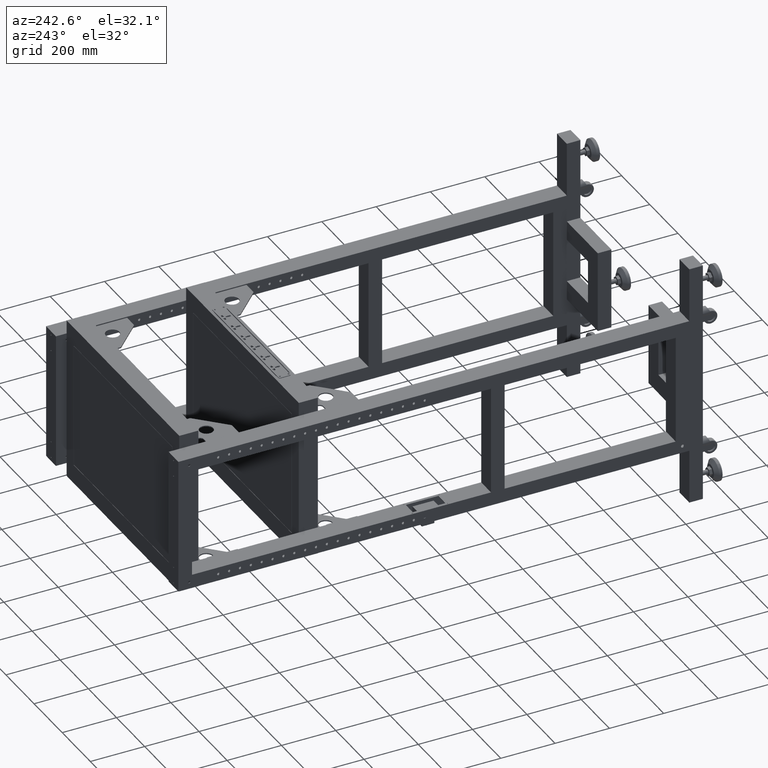
[diagram: clean part render]
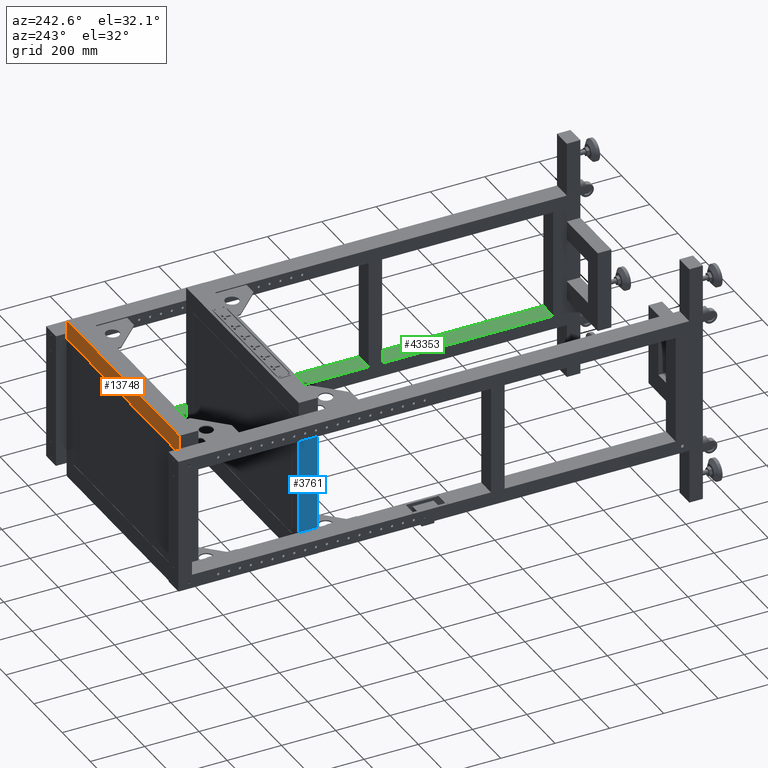
[diagram: same view with three faces highlighted in distinct colors, each labeled with its STEP entity id]
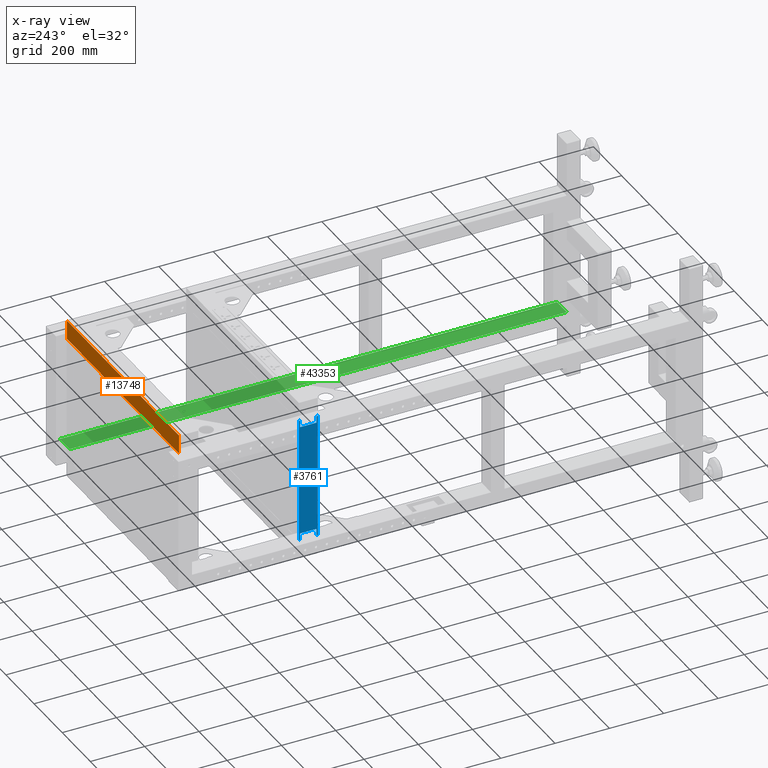
[diagram: x-ray of the same camera — body ghosted, the three highlighted faces saturated]
A machine part, auxiliary view with three faces highlighted in distinct colors.
The next image is the same camera in x-ray (body ghosted, the three faces saturated) — at least one of them is partly hidden behind the body in this view.
Their STEP definitions:

[orange] entity #13748 — the highlighted planar face has unit normal (0, -1, -0).
#2765 = EDGE_CURVE ( 'NONE', #38032, #50186, #41590, .T. ) ;
#4967 = EDGE_CURVE ( 'NONE', #11786, #50186, #11078, .T. ) ;
#10747 = CARTESIAN_POINT ( 'NONE',  ( -2666.172487437186192, 996.9410804020120622, 230.0000000000011653 ) ) ;
#11078 = LINE ( 'NONE', #10747, #46894 ) ;
#11786 = VERTEX_POINT ( 'NONE', #15694 ) ;
#13748 = ADVANCED_FACE ( 'NONE', ( #55523 ), #22703, .F. ) ;
#15446 = VERTEX_POINT ( 'NONE', #22217 ) ;
#15694 = CARTESIAN_POINT ( 'NONE',  ( -1266.172487437185964, 996.9410804020120622, 230.0000000000011653 ) ) ;
#17563 = VECTOR ( 'NONE', #41246, 1000.000000000000000 ) ;
#18889 = EDGE_CURVE ( 'NONE', #15446, #11786, #65076, .T. ) ;
#19153 = CARTESIAN_POINT ( 'NONE',  ( -2666.172487437186192, 996.9410804020118348, 300.0000000000011937 ) ) ;
#22002 = DIRECTION ( 'NONE',  ( 1.000000000000000000, 0.000000000000000000, 0.000000000000000000 ) ) ;
#22217 = CARTESIAN_POINT ( 'NONE',  ( -1266.172487437185964, 996.9410804020118348, 300.0000000000011937 ) ) ;
#22703 = PLANE ( 'NONE',  #46776 ) ;
#23400 = EDGE_CURVE ( 'NONE', #15446, #38032, #39715, .T. ) ;
#28089 = VECTOR ( 'NONE', #22002, 1000.000000000000000 ) ;
#28311 = ORIENTED_EDGE ( 'NONE', *, *, #2765, .T. ) ;
#29401 = DIRECTION ( 'NONE',  ( 0.000000000000000000, 4.000000000000000311E-15, -1.000000000000000000 ) ) ;
#30456 = ORIENTED_EDGE ( 'NONE', *, *, #4967, .F. ) ;
#38032 = VERTEX_POINT ( 'NONE', #55814 ) ;
#38469 = CARTESIAN_POINT ( 'NONE',  ( -2666.172487437186192, 996.9410804020120622, 230.0000000000011653 ) ) ;
#39715 = LINE ( 'NONE', #19153, #28089 ) ;
#40017 = CARTESIAN_POINT ( 'NONE',  ( -1266.172487437185964, 996.9410804020120622, 230.0000000000011653 ) ) ;
#41246 = DIRECTION ( 'NONE',  ( -1.061444687115305130E-30, 4.000000000000000311E-15, -1.000000000000000000 ) ) ;
#41590 = LINE ( 'NONE', #62516, #17563 ) ;
#43273 = DIRECTION ( 'NONE',  ( 1.000000000000000000, 0.000000000000000000, 0.000000000000000000 ) ) ;
#45308 = EDGE_LOOP ( 'NONE', ( #30456, #67322, #54077, #28311 ) ) ;
#46752 = DIRECTION ( 'NONE',  ( 1.000000000000000000, 0.000000000000000000, 0.000000000000000000 ) ) ;
#46776 = AXIS2_PLACEMENT_3D ( 'NONE', #38469, #55180, #43273 ) ;
#46894 = VECTOR ( 'NONE', #46752, 1000.000000000000000 ) ;
#50186 = VERTEX_POINT ( 'NONE', #66356 ) ;
#54077 = ORIENTED_EDGE ( 'NONE', *, *, #23400, .T. ) ;
#55180 = DIRECTION ( 'NONE',  ( 0.000000000000000000, -1.000000000000000000, -4.000000000000000311E-15 ) ) ;
#55523 = FACE_OUTER_BOUND ( 'NONE', #45308, .T. ) ;
#55814 = CARTESIAN_POINT ( 'NONE',  ( -470.1724874371842020, 996.9410804020121759, 300.0000000000011937 ) ) ;
#62516 = CARTESIAN_POINT ( 'NONE',  ( -470.1724874371842020, 996.9410804020124033, 230.0000000000011653 ) ) ;
#63021 = VECTOR ( 'NONE', #29401, 1000.000000000000000 ) ;
#65076 = LINE ( 'NONE', #40017, #63021 ) ;
#66356 = CARTESIAN_POINT ( 'NONE',  ( -470.1724874371842020, 996.9410804020124033, 230.0000000000011653 ) ) ;
#67322 = ORIENTED_EDGE ( 'NONE', *, *, #18889, .F. ) ;

[blue] entity #3761 — the highlighted planar face has unit normal (1, 0, 0).
#1329 = DIRECTION ( 'NONE',  ( 0.000000000000000000, 2.999999999999999839E-15, -1.000000000000000000 ) ) ;
#2138 = EDGE_CURVE ( 'NONE', #4147, #61268, #28057, .T. ) ;
#2590 = DIRECTION ( 'NONE',  ( 0.000000000000000000, -2.999999999999999839E-15, 1.000000000000000000 ) ) ;
#2899 = VERTEX_POINT ( 'NONE', #6589 ) ;
#3761 = ADVANCED_FACE ( 'NONE', ( #39564 ), #50187, .F. ) ;
#4147 = VERTEX_POINT ( 'NONE', #34327 ) ;
#6589 = CARTESIAN_POINT ( 'NONE',  ( -1268.172487437185964, 556.9410804020109254, 230.0000000000001137 ) ) ;
#7427 = CARTESIAN_POINT ( 'NONE',  ( -1268.172487437185964, 491.9410804020124033, -230.0000000000001137 ) ) ;
#8571 = VECTOR ( 'NONE', #1329, 1000.000000000000000 ) ;
#13022 = CARTESIAN_POINT ( 'NONE',  ( -1268.172487437185964, 551.9410804020110390, 205.0000000000000853 ) ) ;
#13253 = VERTEX_POINT ( 'NONE', #14626 ) ;
#13572 = CARTESIAN_POINT ( 'NONE',  ( -1268.172487437185964, 486.9410804020124033, -230.0000000000001137 ) ) ;
#13856 = ORIENTED_EDGE ( 'NONE', *, *, #17263, .T. ) ;
#14053 = LINE ( 'NONE', #18519, #55411 ) ;
#14534 = DIRECTION ( 'NONE',  ( -1.000000000000000078E-15, 1.000000000000000000, 2.999999999999999839E-15 ) ) ;
#14626 = CARTESIAN_POINT ( 'NONE',  ( -1268.172487437185964, 491.9410804020122896, -205.0000000000000853 ) ) ;
#14922 = CARTESIAN_POINT ( 'NONE',  ( -1268.172487437185964, 486.9410804020109822, 229.9999999999998863 ) ) ;
#15626 = EDGE_CURVE ( 'NONE', #22587, #13253, #35900, .T. ) ;
#16783 = DIRECTION ( 'NONE',  ( -1.000000000000000078E-15, 1.000000000000000000, 2.999999999999999839E-15 ) ) ;
#16889 = CARTESIAN_POINT ( 'NONE',  ( -1268.172487437185964, 551.9410804020110390, 237.8650255704256153 ) ) ;
#17263 = EDGE_CURVE ( 'NONE', #60945, #61268, #41651, .T. ) ;
#17805 = LINE ( 'NONE', #22957, #8571 ) ;
#18519 = CARTESIAN_POINT ( 'NONE',  ( -1268.172487437185964, 556.9410804020124033, -229.9999999999998863 ) ) ;
#18559 = VERTEX_POINT ( 'NONE', #34268 ) ;
#18715 = DIRECTION ( 'NONE',  ( -1.000000000000000078E-15, 1.000000000000000000, 2.999999999999999839E-15 ) ) ;
#18812 = VECTOR ( 'NONE', #37790, 1000.000000000000000 ) ;
#19727 = LINE ( 'NONE', #65687, #23974 ) ;
#19731 = CARTESIAN_POINT ( 'NONE',  ( -1268.172487437185964, 486.9410804020109822, 229.9999999999998863 ) ) ;
#20059 = DIRECTION ( 'NONE',  ( -1.000000000000000078E-15, 1.000000000000000000, 2.999999999999999839E-15 ) ) ;
#21438 = VERTEX_POINT ( 'NONE', #23138 ) ;
#21932 = LINE ( 'NONE', #63767, #25293 ) ;
#22223 = DIRECTION ( 'NONE',  ( 1.319581717850421866E-31, -3.131958171785041999E-15, 1.000000000000000000 ) ) ;
#22587 = VERTEX_POINT ( 'NONE', #7427 ) ;
#22957 = CARTESIAN_POINT ( 'NONE',  ( -1268.172487437185964, 551.9410804020124033, -237.8650255704258427 ) ) ;
#23138 = CARTESIAN_POINT ( 'NONE',  ( -1268.172487437185964, 551.9410804020110390, 205.0000000000000853 ) ) ;
#23426 = VERTEX_POINT ( 'NONE', #32637 ) ;
#23974 = VECTOR ( 'NONE', #18715, 1000.000000000000000 ) ;
#24468 = CARTESIAN_POINT ( 'NONE',  ( -1268.172487437185964, 486.9410804020124033, -230.0000000000001137 ) ) ;
#25014 = EDGE_CURVE ( 'NONE', #37795, #23426, #17805, .T. ) ;
#25293 = VECTOR ( 'NONE', #16783, 1000.000000000000000 ) ;
#25472 = EDGE_CURVE ( 'NONE', #23426, #44410, #19727, .T. ) ;
#25951 = AXIS2_PLACEMENT_3D ( 'NONE', #24468, #46062, #14534 ) ;
#26218 = EDGE_LOOP ( 'NONE', ( #49586, #62018, #65457, #66785, #29541, #32062, #13856, #38558, #49454, #53591, #31546, #46750 ) ) ;
#27022 = EDGE_CURVE ( 'NONE', #30373, #21438, #53250, .T. ) ;
#28057 = LINE ( 'NONE', #32865, #41698 ) ;
#28594 = CARTESIAN_POINT ( 'NONE',  ( -1268.172487437185964, 556.9410804020124033, -229.9999999999998863 ) ) ;
#29541 = ORIENTED_EDGE ( 'NONE', *, *, #39828, .F. ) ;
#30373 = VERTEX_POINT ( 'NONE', #53584 ) ;
#30559 = VECTOR ( 'NONE', #2590, 1000.000000000000000 ) ;
#30700 = DIRECTION ( 'NONE',  ( -1.000000000000000078E-15, 1.000000000000000000, 2.999999999999999839E-15 ) ) ;
#31546 = ORIENTED_EDGE ( 'NONE', *, *, #53139, .T. ) ;
#32062 = ORIENTED_EDGE ( 'NONE', *, *, #60934, .T. ) ;
#32147 = EDGE_CURVE ( 'NONE', #44410, #2899, #14053, .T. ) ;
#32637 = CARTESIAN_POINT ( 'NONE',  ( -1268.172487437185964, 551.9410804020124033, -229.9999999999998863 ) ) ;
#32865 = CARTESIAN_POINT ( 'NONE',  ( -1268.172487437185964, 491.9410804020109822, 237.8650255704254448 ) ) ;
#33838 = VECTOR ( 'NONE', #50993, 1000.000000000000000 ) ;
#34268 = CARTESIAN_POINT ( 'NONE',  ( -1268.172487437185964, 486.9410804020124033, -230.0000000000001137 ) ) ;
#34327 = CARTESIAN_POINT ( 'NONE',  ( -1268.172487437185964, 491.9410804020110390, 204.9999999999999147 ) ) ;
#34814 = CARTESIAN_POINT ( 'NONE',  ( -1268.172487437185964, 486.9410804020109822, 229.9999999999998863 ) ) ;
#35900 = LINE ( 'NONE', #61973, #33838 ) ;
#37502 = CARTESIAN_POINT ( 'NONE',  ( -1268.172487437185964, 491.9410804020110390, 229.9999999999999147 ) ) ;
#37790 = DIRECTION ( 'NONE',  ( 0.000000000000000000, 2.999999999999999839E-15, -1.000000000000000000 ) ) ;
#37795 = VERTEX_POINT ( 'NONE', #66846 ) ;
#38558 = ORIENTED_EDGE ( 'NONE', *, *, #2138, .F. ) ;
#38659 = VECTOR ( 'NONE', #65473, 1000.000000000000000 ) ;
#39425 = DIRECTION ( 'NONE',  ( 0.000000000000000000, -2.999999999999999839E-15, 1.000000000000000000 ) ) ;
#39564 = FACE_OUTER_BOUND ( 'NONE', #26218, .T. ) ;
#39828 = EDGE_CURVE ( 'NONE', #18559, #22587, #40629, .T. ) ;
#40629 = LINE ( 'NONE', #61553, #65658 ) ;
#41651 = LINE ( 'NONE', #19731, #45293 ) ;
#41698 = VECTOR ( 'NONE', #22223, 1000.000000000000000 ) ;
#44410 = VERTEX_POINT ( 'NONE', #28594 ) ;
#45293 = VECTOR ( 'NONE', #20059, 1000.000000000000000 ) ;
#45914 = EDGE_CURVE ( 'NONE', #21438, #4147, #59994, .T. ) ;
#46062 = DIRECTION ( 'NONE',  ( 1.000000000000000000, 1.000000000000000078E-15, 2.999999999999999900E-30 ) ) ;
#46750 = ORIENTED_EDGE ( 'NONE', *, *, #32147, .F. ) ;
#49454 = ORIENTED_EDGE ( 'NONE', *, *, #45914, .F. ) ;
#49586 = ORIENTED_EDGE ( 'NONE', *, *, #25472, .F. ) ;
#50187 = PLANE ( 'NONE',  #25951 ) ;
#50993 = DIRECTION ( 'NONE',  ( -1.319581717850421866E-31, -2.868041828214957678E-15, 1.000000000000000000 ) ) ;
#51257 = DIRECTION ( 'NONE',  ( -1.000000000000000078E-15, 1.000000000000000000, 2.999999999999999839E-15 ) ) ;
#51260 = LINE ( 'NONE', #14922, #53498 ) ;
#53139 = EDGE_CURVE ( 'NONE', #30373, #2899, #51260, .T. ) ;
#53250 = LINE ( 'NONE', #16889, #18812 ) ;
#53498 = VECTOR ( 'NONE', #30700, 1000.000000000000000 ) ;
#53584 = CARTESIAN_POINT ( 'NONE',  ( -1268.172487437185964, 551.9410804020110390, 230.0000000000000853 ) ) ;
#53591 = ORIENTED_EDGE ( 'NONE', *, *, #27022, .F. ) ;
#55355 = EDGE_CURVE ( 'NONE', #13253, #37795, #21932, .T. ) ;
#55411 = VECTOR ( 'NONE', #39425, 1000.000000000000000 ) ;
#59994 = LINE ( 'NONE', #13022, #38659 ) ;
#60218 = LINE ( 'NONE', #13572, #30559 ) ;
#60934 = EDGE_CURVE ( 'NONE', #18559, #60945, #60218, .T. ) ;
#60945 = VERTEX_POINT ( 'NONE', #34814 ) ;
#61268 = VERTEX_POINT ( 'NONE', #37502 ) ;
#61553 = CARTESIAN_POINT ( 'NONE',  ( -1268.172487437185964, 486.9410804020124033, -230.0000000000001137 ) ) ;
#61973 = CARTESIAN_POINT ( 'NONE',  ( -1268.172487437185964, 491.9410804020124033, -237.8650255704260701 ) ) ;
#62018 = ORIENTED_EDGE ( 'NONE', *, *, #25014, .F. ) ;
#63767 = CARTESIAN_POINT ( 'NONE',  ( -1268.172487437185964, 551.9410804020124033, -204.9999999999998863 ) ) ;
#65457 = ORIENTED_EDGE ( 'NONE', *, *, #55355, .F. ) ;
#65473 = DIRECTION ( 'NONE',  ( 1.000000000000000078E-15, -1.000000000000000000, -2.999999999999999839E-15 ) ) ;
#65658 = VECTOR ( 'NONE', #51257, 1000.000000000000000 ) ;
#65687 = CARTESIAN_POINT ( 'NONE',  ( -1268.172487437185964, 486.9410804020124033, -230.0000000000001137 ) ) ;
#66785 = ORIENTED_EDGE ( 'NONE', *, *, #15626, .F. ) ;
#66846 = CARTESIAN_POINT ( 'NONE',  ( -1268.172487437185964, 551.9410804020124033, -204.9999999999998863 ) ) ;

[green] entity #43353 — the highlighted planar face has unit normal (0, 0, 1).
#1235 = VERTEX_POINT ( 'NONE', #20803 ) ;
#1393 = VECTOR ( 'NONE', #39684, 1000.000000000000000 ) ;
#1567 = CARTESIAN_POINT ( 'NONE',  ( -468.1724874371853389, 919.4410804020113801, -200.0000000000000000 ) ) ;
#1936 = CARTESIAN_POINT ( 'NONE',  ( -398.1724874371852252, 986.4410804020139949, -200.0000000000000284 ) ) ;
#1975 = CARTESIAN_POINT ( 'NONE',  ( -398.1724874371852252, 919.4410804020139949, -200.0000000000000284 ) ) ;
#3333 = LINE ( 'NONE', #35552, #1393 ) ;
#3934 = LINE ( 'NONE', #66694, #56322 ) ;
#4095 = VERTEX_POINT ( 'NONE', #33655 ) ;
#5778 = DIRECTION ( 'NONE',  ( 1.265361171778826024E-15, -1.000000000000000000, -0.000000000000000000 ) ) ;
#7727 = LINE ( 'NONE', #28629, #56284 ) ;
#7824 = DIRECTION ( 'NONE',  ( -1.000000000000000000, -1.851030650155647686E-15, 0.000000000000000000 ) ) ;
#9867 = EDGE_CURVE ( 'NONE', #27692, #23999, #3934, .T. ) ;
#12142 = PLANE ( 'NONE',  #59333 ) ;
#12678 = ORIENTED_EDGE ( 'NONE', *, *, #15527, .F. ) ;
#13103 = EDGE_CURVE ( 'NONE', #1235, #4095, #65720, .T. ) ;
#15527 = EDGE_CURVE ( 'NONE', #40727, #30305, #23584, .T. ) ;
#16744 = CARTESIAN_POINT ( 'NONE',  ( -468.1885304880764238, 986.4410804020139949, -200.0000000000000284 ) ) ;
#17955 = DIRECTION ( 'NONE',  ( 0.000000000000000000, 0.000000000000000000, 1.000000000000000000 ) ) ;
#20406 = DIRECTION ( 'NONE',  ( -1.000000000000000000, -2.653611717788262425E-16, 0.000000000000000000 ) ) ;
#20803 = CARTESIAN_POINT ( 'NONE',  ( -398.1724874371852252, 986.4410804020139949, -200.0000000000000284 ) ) ;
#21117 = CARTESIAN_POINT ( 'NONE',  ( -468.1885304880764238, 926.9410804020131991, -200.0000000000000284 ) ) ;
#21846 = EDGE_CURVE ( 'NONE', #23999, #40727, #52122, .T. ) ;
#23485 = DIRECTION ( 'NONE',  ( -2.653611717788262425E-16, 1.000000000000000000, 0.000000000000000000 ) ) ;
#23584 = LINE ( 'NONE', #1975, #65619 ) ;
#23719 = VECTOR ( 'NONE', #44456, 1000.000000000000000 ) ;
#23999 = VERTEX_POINT ( 'NONE', #67390 ) ;
#24450 = ORIENTED_EDGE ( 'NONE', *, *, #21846, .F. ) ;
#25070 = ORIENTED_EDGE ( 'NONE', *, *, #53983, .F. ) ;
#27692 = VERTEX_POINT ( 'NONE', #42451 ) ;
#28629 = CARTESIAN_POINT ( 'NONE',  ( -398.1724874371848273, -844.5589195979887336, -200.0000000000000000 ) ) ;
#29198 = EDGE_CURVE ( 'NONE', #66024, #47667, #3333, .T. ) ;
#30305 = VERTEX_POINT ( 'NONE', #54249 ) ;
#32092 = CARTESIAN_POINT ( 'NONE',  ( -468.1724874371842020, 926.9410804020130854, -200.0000000000000000 ) ) ;
#33655 = CARTESIAN_POINT ( 'NONE',  ( -468.1724874371842020, 986.4410804020139949, -200.0000000000000284 ) ) ;
#35552 = CARTESIAN_POINT ( 'NONE',  ( -398.1724874371861347, 926.9410804020131991, -200.0000000000000000 ) ) ;
#35897 = VECTOR ( 'NONE', #5778, 1000.000000000000000 ) ;
#35901 = EDGE_LOOP ( 'NONE', ( #40812, #12678, #24450, #48947, #54365, #37196, #25070, #48411 ) ) ;
#37196 = ORIENTED_EDGE ( 'NONE', *, *, #13103, .T. ) ;
#37922 = EDGE_CURVE ( 'NONE', #66024, #30305, #58916, .T. ) ;
#39684 = DIRECTION ( 'NONE',  ( 1.000000000000000000, 7.102496594662482472E-16, 0.000000000000000000 ) ) ;
#40727 = VERTEX_POINT ( 'NONE', #1567 ) ;
#40812 = ORIENTED_EDGE ( 'NONE', *, *, #37922, .T. ) ;
#42451 = CARTESIAN_POINT ( 'NONE',  ( -398.1724874371848273, -844.5589195979887336, -200.0000000000000000 ) ) ;
#43353 = ADVANCED_FACE ( 'NONE', ( #63924 ), #12142, .T. ) ;
#43423 = CARTESIAN_POINT ( 'NONE',  ( -468.1724874371819851, -844.5589195979887336, -200.0000000000000000 ) ) ;
#44456 = DIRECTION ( 'NONE',  ( -1.000000000000000000, -1.851030650155647686E-15, 0.000000000000000000 ) ) ;
#47667 = VERTEX_POINT ( 'NONE', #32092 ) ;
#48411 = ORIENTED_EDGE ( 'NONE', *, *, #29198, .F. ) ;
#48947 = ORIENTED_EDGE ( 'NONE', *, *, #9867, .F. ) ;
#52122 = LINE ( 'NONE', #56593, #59670 ) ;
#53050 = DIRECTION ( 'NONE',  ( -1.265361171778826419E-15, 1.000000000000000000, 0.000000000000000000 ) ) ;
#53644 = DIRECTION ( 'NONE',  ( 2.653611717788262425E-16, -1.000000000000000000, 0.000000000000000000 ) ) ;
#53970 = CARTESIAN_POINT ( 'NONE',  ( -398.1724874371848273, -844.5589195979887336, -200.0000000000000000 ) ) ;
#53983 = EDGE_CURVE ( 'NONE', #47667, #4095, #58194, .T. ) ;
#54249 = CARTESIAN_POINT ( 'NONE',  ( -468.1885304880764238, 919.4410804020138812, -200.0000000000000284 ) ) ;
#54365 = ORIENTED_EDGE ( 'NONE', *, *, #66207, .T. ) ;
#56251 = DIRECTION ( 'NONE',  ( -2.653611717788262425E-16, 1.000000000000000000, 0.000000000000000000 ) ) ;
#56284 = VECTOR ( 'NONE', #23485, 1000.000000000000000 ) ;
#56322 = VECTOR ( 'NONE', #20406, 1000.000000000000000 ) ;
#56593 = CARTESIAN_POINT ( 'NONE',  ( -468.1724874371848841, -844.5589195979887336, -200.0000000000000000 ) ) ;
#56896 = VECTOR ( 'NONE', #53050, 1000.000000000000000 ) ;
#58194 = LINE ( 'NONE', #43423, #56896 ) ;
#58916 = LINE ( 'NONE', #16744, #35897 ) ;
#59333 = AXIS2_PLACEMENT_3D ( 'NONE', #53970, #17955, #53644 ) ;
#59670 = VECTOR ( 'NONE', #56251, 1000.000000000000000 ) ;
#63924 = FACE_OUTER_BOUND ( 'NONE', #35901, .T. ) ;
#65619 = VECTOR ( 'NONE', #7824, 1000.000000000000000 ) ;
#65720 = LINE ( 'NONE', #1936, #23719 ) ;
#66024 = VERTEX_POINT ( 'NONE', #21117 ) ;
#66207 = EDGE_CURVE ( 'NONE', #27692, #1235, #7727, .T. ) ;
#66694 = CARTESIAN_POINT ( 'NONE',  ( -398.1724874371848273, -844.5589195979887336, -200.0000000000000000 ) ) ;
#67390 = CARTESIAN_POINT ( 'NONE',  ( -468.1724874371848841, -844.5589195979887336, -200.0000000000000000 ) ) ;